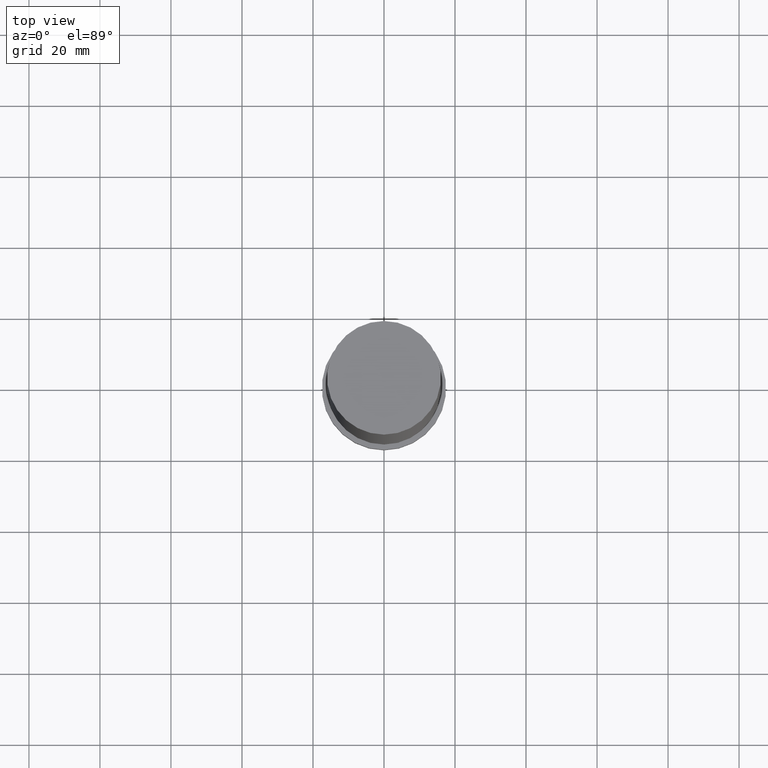
[diagram: clean part render]
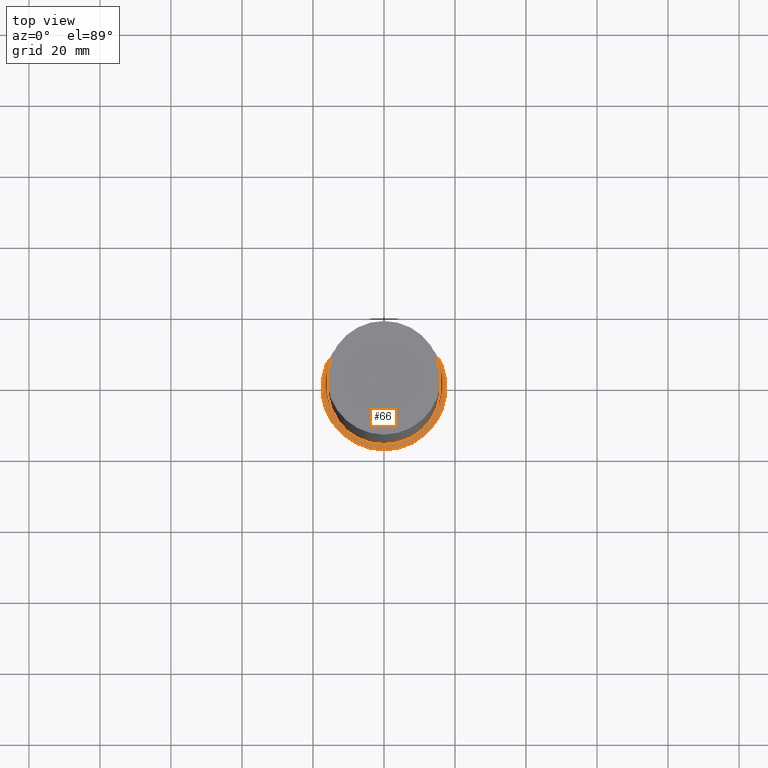
[diagram: same view with one face highlighted and labeled with its STEP entity id]
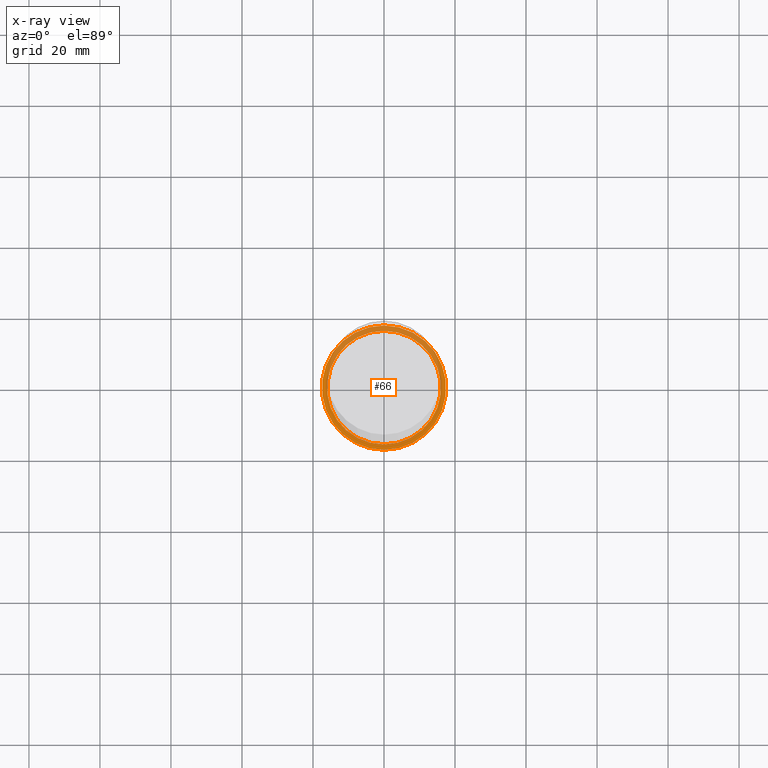
[diagram: x-ray of the same camera — body ghosted, the highlighted face saturated]
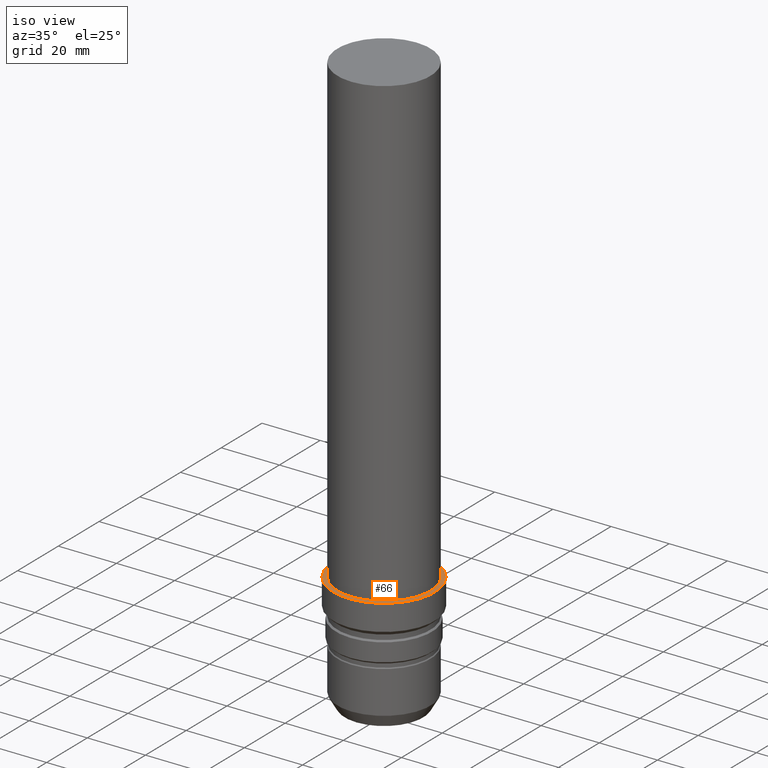
[diagram: same view with one face highlighted and labeled with its STEP entity id]
A machine part, top view. The second image highlights one B-rep face of the part: STEP entity #66.
The next image is the same camera in x-ray: the body ghosted, the highlighted face saturated — about 39% of this face is hidden behind the body in this view.
A second angle (iso view) of the same face is appended — the face is thin or edge-on in the first view.
In plain terms, the highlighted planar face has unit normal (-0, 0, 1).
Its self-contained STEP definition (entity closure, byte-faithful):
#66=ADVANCED_FACE('Unnamed[1]',(#161,#162),#163,.T.);
#68=EDGE_CURVE('Unnamed[1]',#165,#165,#166,.T.);
#96=EDGE_CURVE('Unnamed[1]',#209,#209,#210,.T.);
#161=FACE_OUTER_BOUND('',#283,.T.);
#162=FACE_BOUND('',#284,.T.);
#163=PLANE('',#285);
#165=VERTEX_POINT('',#288);
#166=CIRCLE('',#289,16.0000000000002);
#209=VERTEX_POINT('',#343);
#210=CIRCLE('',#344,17.5000000000002);
#283=EDGE_LOOP('',(#417));
#284=EDGE_LOOP('',(#418));
#285=AXIS2_PLACEMENT_3D('',#419,#420,#421);
#288=CARTESIAN_POINT('',(-2.4492935982947E-015,16.0000000000002,39.9999999999999));
#289=AXIS2_PLACEMENT_3D('',#422,#423,#424);
#343=CARTESIAN_POINT('',(-2.44929359829466E-015,17.5000000000002,39.9999999999992));
#344=AXIS2_PLACEMENT_3D('',#472,#473,#474);
#417=ORIENTED_EDGE('',*,*,#96,.F.);
#418=ORIENTED_EDGE('',*,*,#68,.T.);
#419=CARTESIAN_POINT('',(-2.44929359829468E-015,16.7500000000002,39.9999999999995));
#420=DIRECTION('',(-6.12323399573677E-017,4.54624886206558E-013,1.0));
#421=DIRECTION('',(-2.78329184325488E-029,-1.0,4.54624886206558E-013));
#422=CARTESIAN_POINT('',(-2.4492935982947E-015,4.29429969618264E-014,39.9999999999999));
#423=DIRECTION('',(6.12323399573677E-017,-1.07357492404574E-015,-1.0));
#424=DIRECTION('',(6.09103519881023E-032,1.0,-1.07357492404574E-015));
#472=CARTESIAN_POINT('',(-2.44929359829466E-015,4.29429969618257E-014,39.9999999999992));
#473=DIRECTION('',(6.12323399573676E-017,-1.07357492404567E-015,-1.0));
#474=DIRECTION('',(6.09103519880942E-032,1.0,-1.07357492404567E-015));